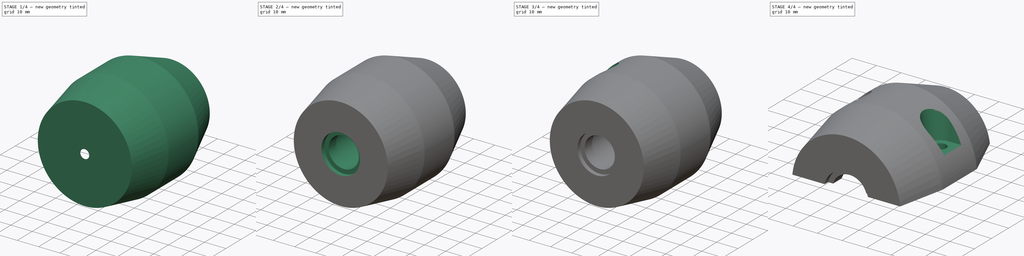
[diagram: build sequence overview — one tinted view per stage of 4, left to right]
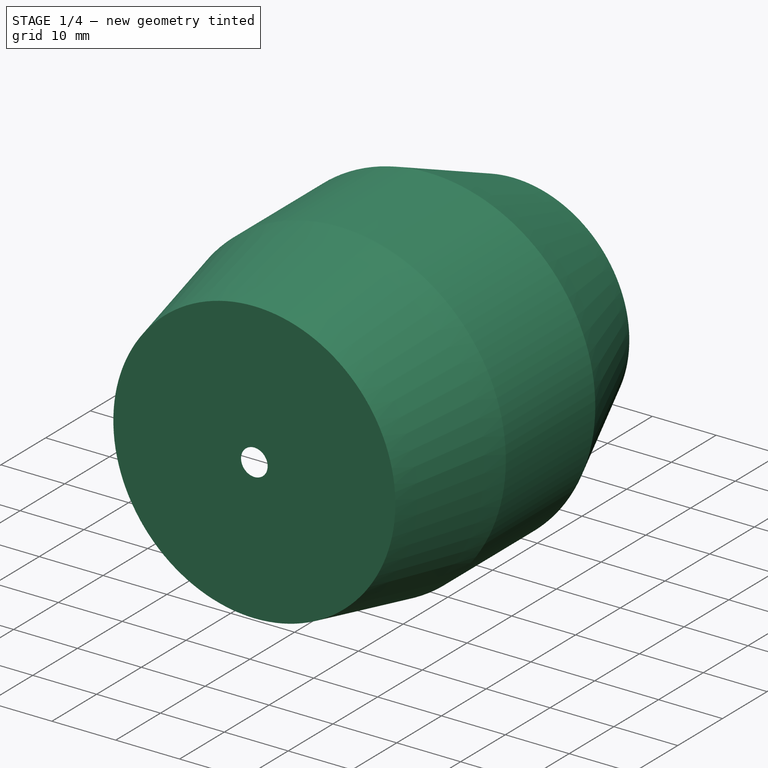
[diagram: stage 1 of 4 — iso view after this stage's code; geometry added in this stage tinted green]
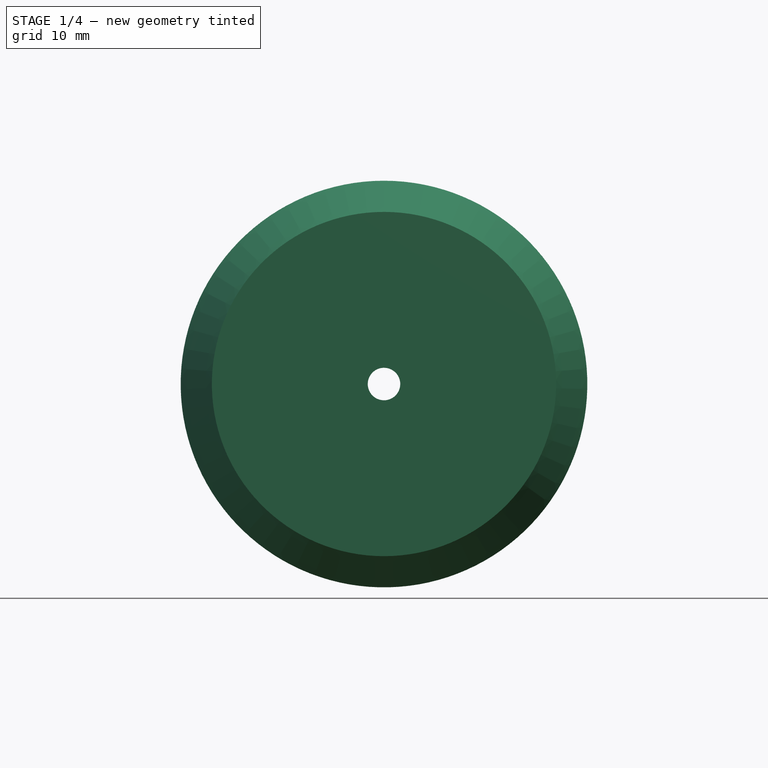
[diagram: stage 1 of 4 — front view after this stage's code; geometry added in this stage tinted green]
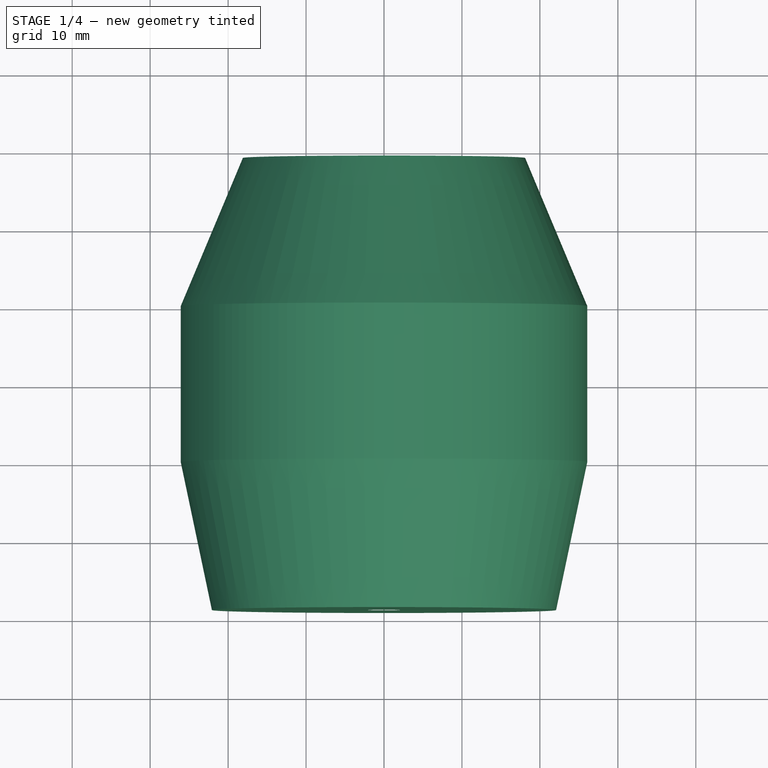
[diagram: stage 1 of 4 — top view after this stage's code; geometry added in this stage tinted green]
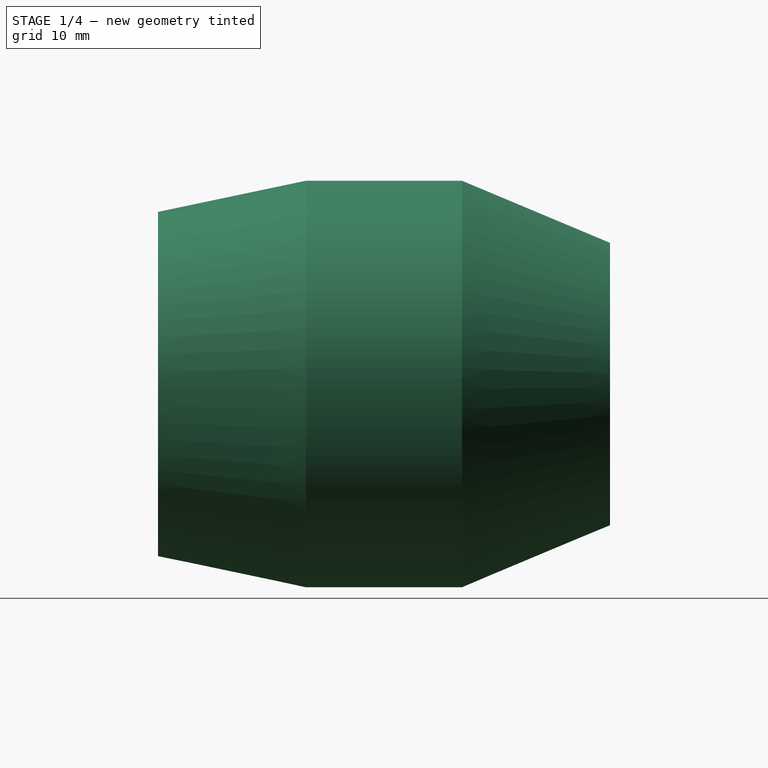
[diagram: stage 1 of 4 — right view after this stage's code; geometry added in this stage tinted green]
FCSTD DOCUMENT  (FreeCAD 1.1R41905 (Git))
Label: 23-12-05-SINK_WEIGHT
License: Creative Commons Attribution-NonCommercial-ShareAlike 4.0
LicenseURL: https://creativecommons.org/licenses/by-nc-sa/4.0/
objects: Sketcher::SketchObject×5, PartDesign::Pocket×5, PartDesign::Mirrored×2, App::Point×1, PartDesign::Pad×1, PartDesign::Revolution×1, Part::DatumPlane×1, PartDesign::Hole×1, PartDesign::Body×1, App::TextDocument×1
note: 39 computed .brp shape members not serialized (recipe doc carries the construction recipe); baked Part::Feature solids carry a one-line shape summary decoded from their .brp

FEATURE [App::Point] Origin001  label="Origine"
  Role = Origin
FEATURE [Sketcher::SketchObject] Sketch
  ArcFitTolerance = 1e-06
  AttachmentSupport = -> [Origin]
  ExternalTypes = [0]
  FullyConstrained = false
  MakeInternals = false
  MapMode = 5
  Placement = pos=(0,0,0) rot=(1,0,0;1.5708rad)
  sketch-geometry (7):
    g0: ArcOfCircle CenterX=0 CenterY=0 CenterZ=0 NormalX=0 NormalY=0 NormalZ=1 AngleXU=0 Radius=26.0833 StartAngle=0.0799574 EndAngle=3.06164
    g1: LineSegment StartX=-26 StartY=2.08333 StartZ=0 EndX=26 EndY=2.08333 EndZ=0
    g2: GeomPoint X=0 Y=26.0833 Z=0
    g3: GeomPoint X=0 Y=9.08333 Z=0
    g4: GeomPoint X=0 Y=2.08333 Z=0
    g5: GeomPoint X=0 Y=7.08333 Z=0
    g6: GeomPoint X=0 Y=12.0833 Z=0
  constraints (14):
    c: Coincident(g0,g-1)
    c: Coincident(g1,g0)
    c: Coincident(g1,g0)
    c: Horizontal(g1)
    c: DistanceX(g1,g1) = 52
    c: PointOnObject(g2,g0)
    c: DistanceY(g0,g2) = 24
    c: PointOnObject(g2,g-2)
    c: PointOnObject(g3,g-2)
    c: Distance(g3,g1) = 7
    c: PointOnObject(g5,g-2)
    c: Distance(g5,g1) = 5
    c: PointOnObject(g6,g-2)
    c: Distance(g6,g1) = 10
FEATURE [PartDesign::Pad] Pad
  Direction = (0,-1,2e-16)
  Length = 20
  Length2 = 10
  Midplane = true
  Profile = -> Sketch
  ReferenceAxis = -> Sketch [N_Axis]
  Refine = true
  Suppressed = false
  Type = 0
FEATURE [Sketcher::SketchObject] Sketch001
  ArcFitTolerance = 1e-06
  AttachmentSupport = -> [Origin]
  ExternalGeometry = -> [Pad]
  ExternalTypes = [0,0]
  FullyConstrained = true
  MakeInternals = false
  MapMode = 5
  Placement = pos=(0,0,0) rot=(0.57735,0.57735,0.57735;2.0944rad)
  sketch-geometry (10):
    g0: LineSegment StartX=10 StartY=2.08333 StartZ=0 EndX=29 EndY=2.08333 EndZ=0
    g1: LineSegment StartX=29 StartY=2.08333 StartZ=0 EndX=29 EndY=18.1115 EndZ=0
    g2: LineSegment StartX=29 StartY=18.1115 StartZ=0 EndX=10 EndY=26.0833 EndZ=0
    g3: LineSegment [constr] StartX=10 StartY=26.0833 StartZ=0 EndX=10 EndY=2.08333 EndZ=0
    g4: LineSegment [constr] StartX=-10 StartY=2.08333 StartZ=0 EndX=-10 EndY=26.0833 EndZ=0
    g5: LineSegment StartX=-10 StartY=26.0833 StartZ=0 EndX=-29 EndY=22.0833 EndZ=0
    g6: LineSegment StartX=-29 StartY=22.0833 StartZ=0 EndX=-29 EndY=2.08333 EndZ=0
    g7: LineSegment StartX=-29 StartY=2.08333 StartZ=0 EndX=-10 EndY=2.08333 EndZ=0
    g8: LineSegment StartX=-10 StartY=26.0833 StartZ=0 EndX=10 EndY=26.0833 EndZ=0
    g9: LineSegment StartX=-10 StartY=2.08333 StartZ=0 EndX=10 EndY=2.08333 EndZ=0
  constraints (24):
    c: Coincident(g-3,g0)
    c: Horizontal(g0)
    c: Coincident(g0,g1)
    c: Vertical(g1)
    c: Coincident(g1,g2)
    c: Coincident(g2,g-3)
    c: Coincident(g2,g3)
    c: Coincident(g3,g0)
    c: Coincident(g-4,g4)
    c: Coincident(g4,g-4)
    c: Coincident(g4,g5)
    c: Coincident(g5,g6)
    c: Vertical(g6)
    c: Coincident(g6,g7)
    c: Coincident(g7,g-4)
    c: Horizontal(g7)
    c: DistanceX(g7,g7) = 19
    c: Equal(g7,g0)
    c: DistanceY(g6,g6) = 20
    c: Equal(g1,g1)
    c: Coincident(g8,g4)
    c: Coincident(g8,g2)
    c: Coincident(g9,g4)
    c: Coincident(g9,g0)
FEATURE [PartDesign::Revolution] Revolution
  Angle = 360
  Angle2 = 60
  Axis = (1e-16,1,-1e-16)
  Base = (0,0,0)
  BaseFeature = -> Pad
  Profile = -> Sketch001
  ReferenceAxis = -> Y_Axis
  Refine = true
  Suppressed = false
  Type = 0
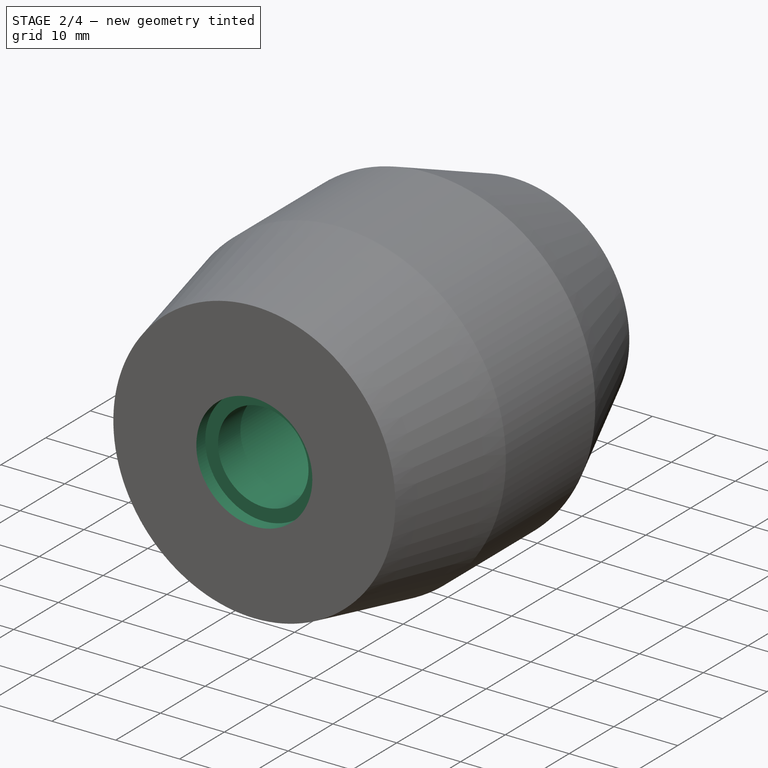
[diagram: stage 2 of 4 — iso view after this stage's code; geometry added in this stage tinted green]
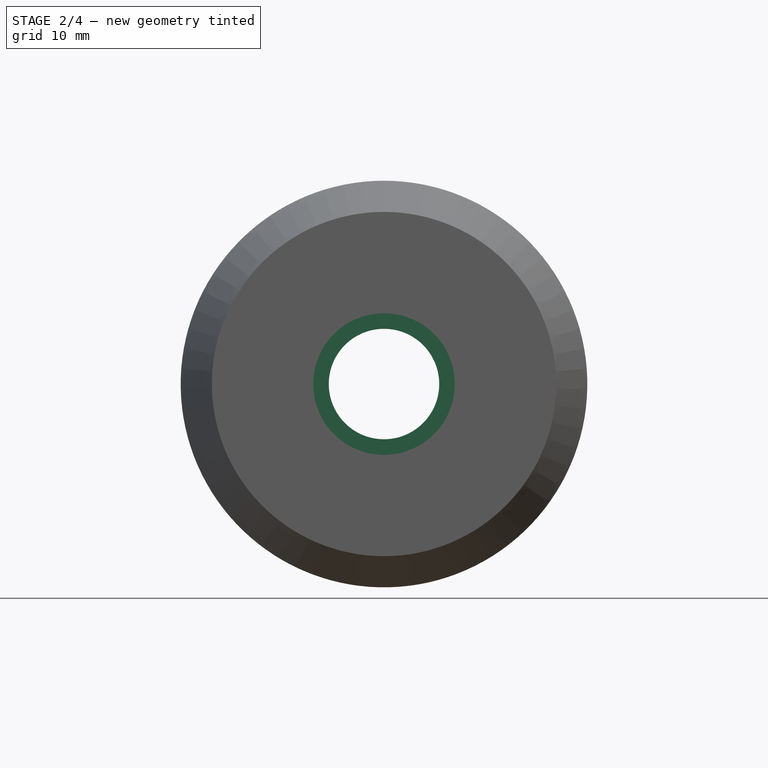
[diagram: stage 2 of 4 — front view after this stage's code; geometry added in this stage tinted green]
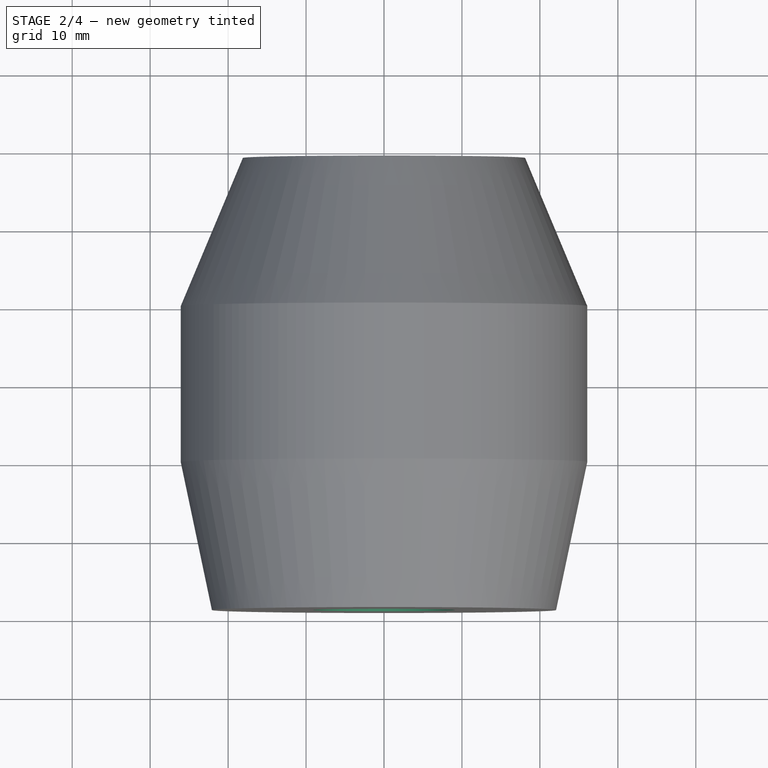
[diagram: stage 2 of 4 — top view after this stage's code; geometry added in this stage tinted green]
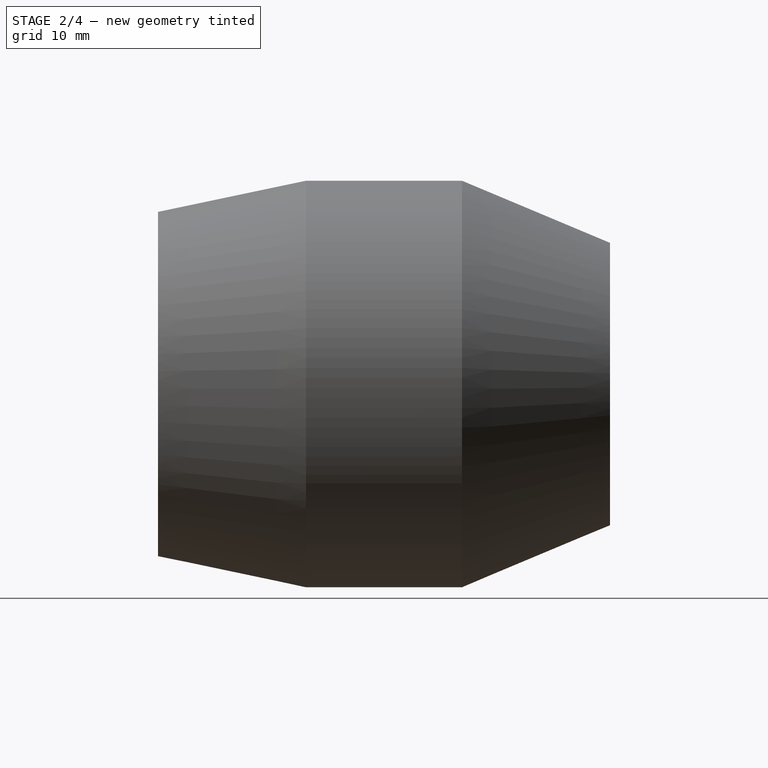
[diagram: stage 2 of 4 — right view after this stage's code; geometry added in this stage tinted green]
FEATURE [Sketcher::SketchObject] Sketch002
  ArcFitTolerance = 1e-06
  AttachmentSupport = -> [Origin]
  ExternalGeometry = -> [Sketch]
  ExternalTypes = [0,0]
  FullyConstrained = true
  MakeInternals = false
  MapMode = 5
  Placement = pos=(0,0,0) rot=(1,0,0;1.5708rad)
  sketch-geometry (2):
    g0: Circle CenterX=0 CenterY=0 CenterZ=0 NormalX=0 NormalY=0 NormalZ=1 AngleXU=0 Radius=9.08333
    g1: Circle CenterX=0 CenterY=0 CenterZ=0 NormalX=0 NormalY=0 NormalZ=1 AngleXU=0 Radius=7.08333
  constraints (4):
    c: Coincident(g0,g-1)
    c: PointOnObject(g-3,g0)
    c: Coincident(g1,g0)
    c: PointOnObject(g-4,g1)
FEATURE [PartDesign::Pocket] Pocket
  BaseFeature = -> Revolution
  Direction = (0,1,-2e-16)
  Length = 5
  Length2 = 5
  Midplane = true
  Profile = -> Sketch002 [Edge2]
  ReferenceAxis = -> Sketch002 [N_Axis]
  Refine = true
  Suppressed = false
  Type = 1
FEATURE [PartDesign::Pocket] Pocket001
  BaseFeature = -> Pocket
  Direction = (0,1,-2e-16)
  Length = 44
  Length2 = 5
  Midplane = true
  Profile = -> Sketch002 [Edge1]
  ReferenceAxis = -> Sketch002 [N_Axis]
  Refine = true
  Suppressed = false
  Type = 0
FEATURE [PartDesign::Pocket] Pocket002
  BaseFeature = -> Pocket001
  Direction = (0,-1,0)
  Length = 7
  Length2 = -5
  Offset = -4
  Profile = -> Pocket001 [Face9]
  Refine = true
  Suppressed = false
  Type = 4
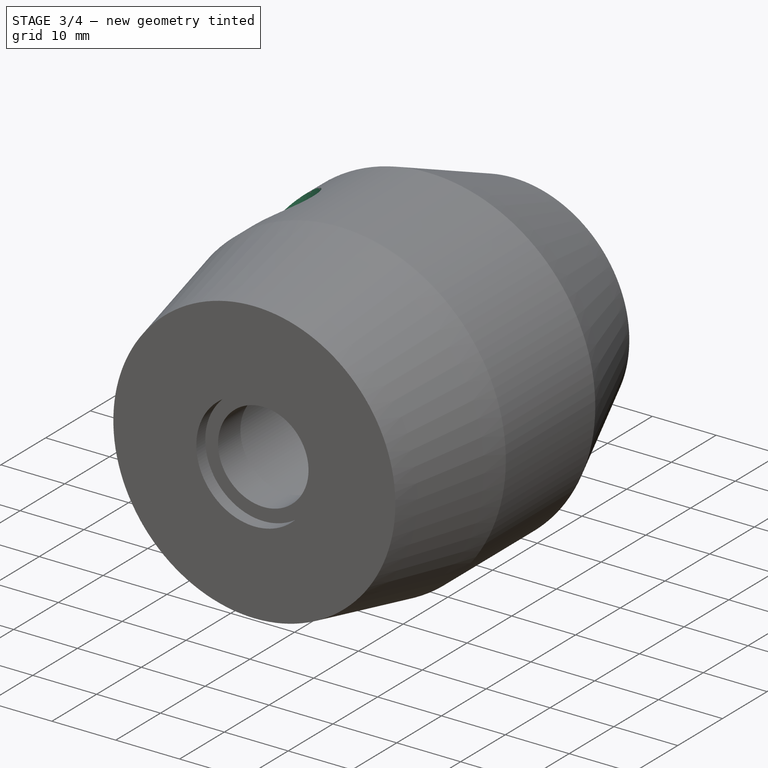
[diagram: stage 3 of 4 — iso view after this stage's code; geometry added in this stage tinted green]
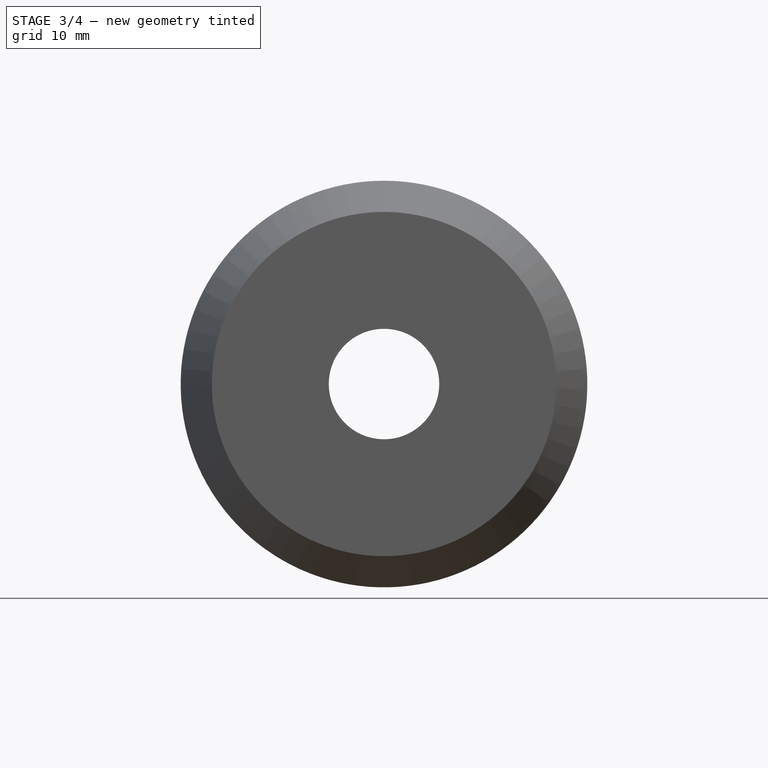
[diagram: stage 3 of 4 — front view after this stage's code; geometry added in this stage tinted green]
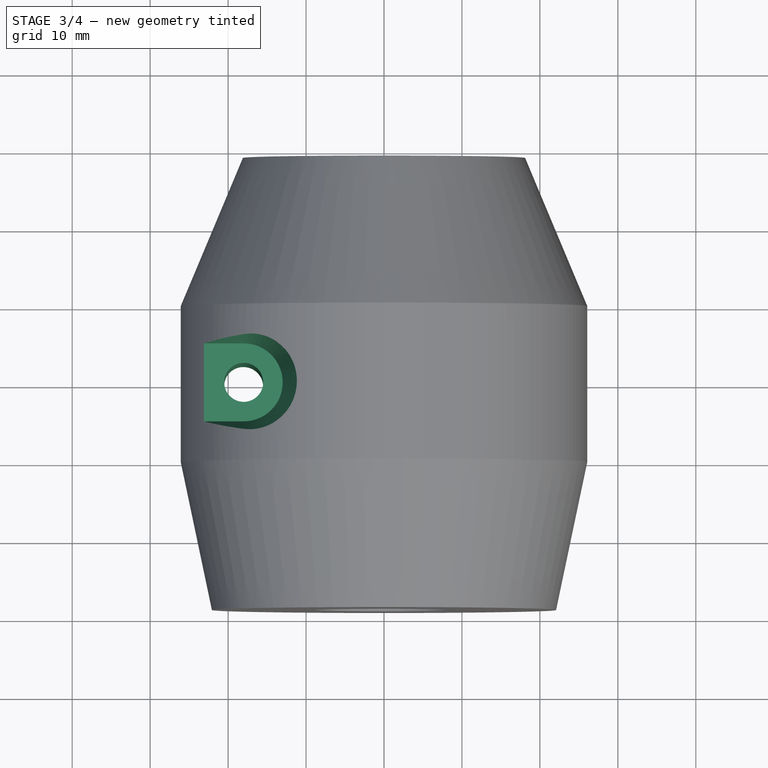
[diagram: stage 3 of 4 — top view after this stage's code; geometry added in this stage tinted green]
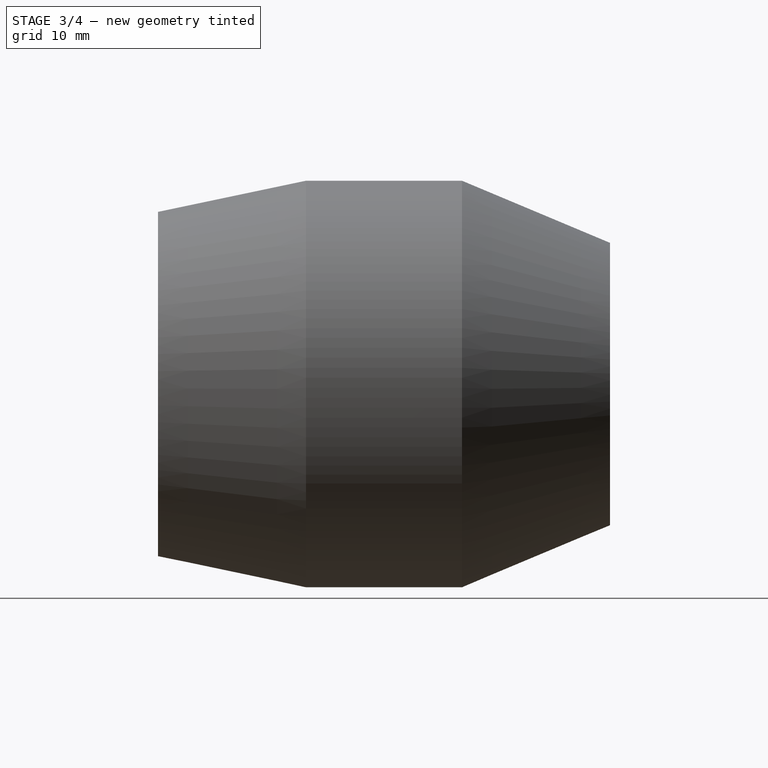
[diagram: stage 3 of 4 — right view after this stage's code; geometry added in this stage tinted green]
FEATURE [PartDesign::Mirrored] Mirrored
  BaseFeature = -> Pocket002
  MirrorPlane = -> XZ_Plane
  Originals = -> [Pocket002]
  Refine = true
  Suppressed = false
  TransformMode = 0
FEATURE [Part::DatumPlane] DatumPlane
  AttachmentSupport = -> [Sketch]
  MapMode = 1
  Placement = pos=(0,2.7e-15,12.0833) rot=(0,0,1;0rad)
FEATURE [Sketcher::SketchObject] Sketch003
  ArcFitTolerance = 1e-06
  AttachmentSupport = -> [DatumPlane]
  ExternalGeometry = -> [Mirrored]
  ExternalTypes = [0]
  FullyConstrained = true
  MakeInternals = false
  MapMode = 5
  Placement = pos=(0,2.7e-15,12.0833) rot=(0,0,1;0rad)
  sketch-geometry (4):
    g0: ArcOfCircle CenterX=-18 CenterY=0 CenterZ=0 NormalX=0 NormalY=0 NormalZ=1 AngleXU=0 Radius=5 StartAngle=4.71239 EndAngle=7.85398
    g1: LineSegment StartX=-26 StartY=5 StartZ=0 EndX=-26 EndY=-5 EndZ=0
    g2: LineSegment StartX=-26 StartY=-5 StartZ=0 EndX=-18 EndY=-5 EndZ=0
    g3: LineSegment StartX=-18 StartY=5 StartZ=0 EndX=-26 EndY=5 EndZ=0
  constraints (13):
    c: PointOnObject(g0,g-1)
    c: Coincident(g1,g2)
    c: Coincident(g3,g1)
    c: Vertical(g1)
    c: Horizontal(g2)
    c: Horizontal(g3)
    c: Vertical(g1,g-3)
    c: Vertical(g0,g3)
    c: Coincident(g3,g0)
    c: Diameter(g0) = 10
    c: Coincident(g2,g0)
    c: Vertical(g0,g0)
    c: DistanceX(g0,g-1) = 18
FEATURE [PartDesign::Pocket] Pocket003
  BaseFeature = -> Mirrored
  Direction = (0,0,-1)
  Length = 30
  Length2 = 5
  Profile = -> Sketch003
  ReferenceAxis = -> Sketch003 [N_Axis]
  Refine = true
  Reversed = true
  Suppressed = false
  TaperAngle = 9
  Type = 0
FEATURE [PartDesign::Hole] Hole
  BaseFeature = -> Pocket003
  BaseProfileType = 7
  CustomThreadClearance = 0
  Depth = 189.547
  DepthType = 1
  Diameter = 5
  DrillForDepth = false
  DrillPoint = 1
  DrillPointAngle = 118
  HoleCutCountersinkAngle = 90
  HoleCutCustomValues = false
  HoleCutDepth = 0
  HoleCutDiameter = 0
  HoleCutType = 0
  ModelThread = false
  Profile = -> Pocket003 [Edge22]
  Refine = true
  Suppressed = false
  Tapered = false
  TaperedAngle = 90
  ThreadClass = 0
  ThreadDepth = 189.547
  ThreadDepthType = 0
  ThreadDiameter = 5
  ThreadDirection = 0
  ThreadFit = 0
  ThreadSize = 0
  ThreadType = 0
  Threaded = false
  UseCustomThreadClearance = false
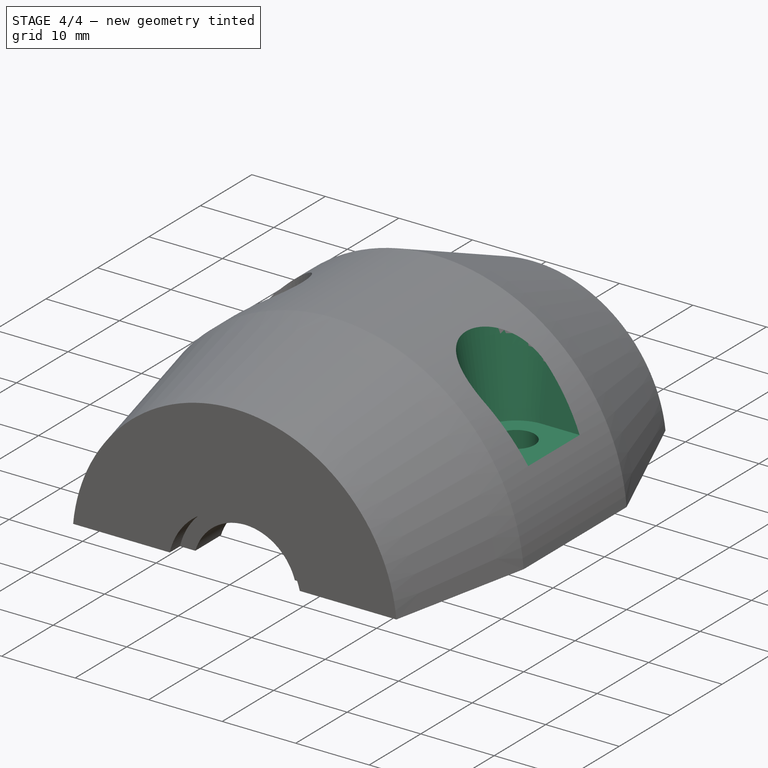
[diagram: stage 4 of 4 — iso view after this stage's code; geometry added in this stage tinted green]
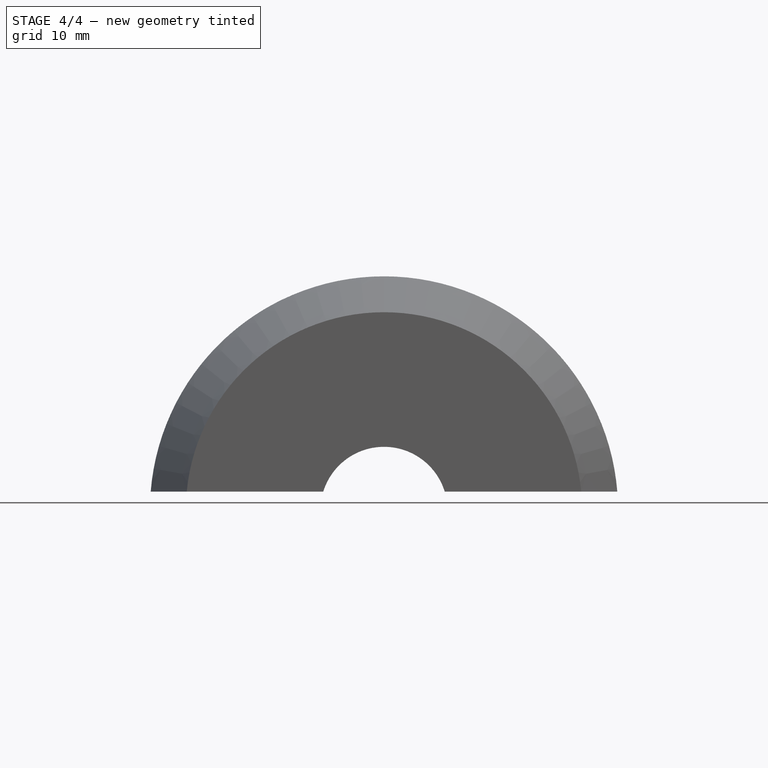
[diagram: stage 4 of 4 — front view after this stage's code; geometry added in this stage tinted green]
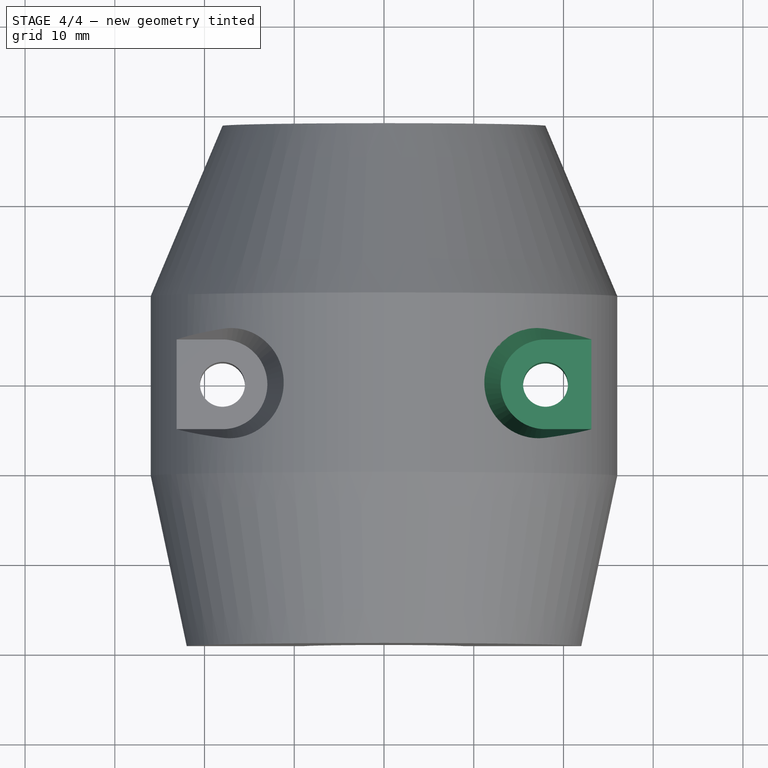
[diagram: stage 4 of 4 — top view after this stage's code; geometry added in this stage tinted green]
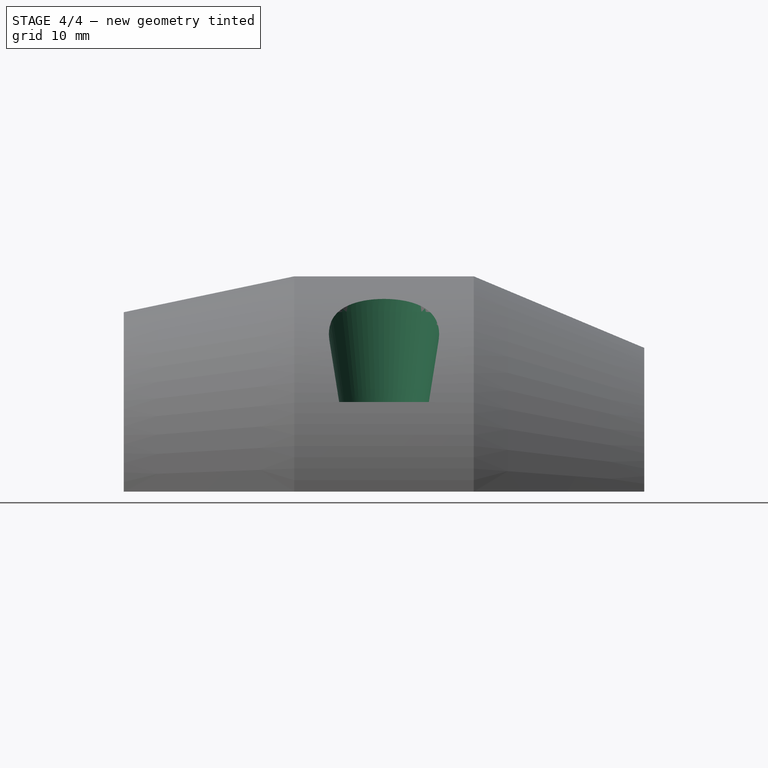
[diagram: stage 4 of 4 — right view after this stage's code; geometry added in this stage tinted green]
FEATURE [PartDesign::Mirrored] Mirrored001
  BaseFeature = -> Hole
  MirrorPlane = -> YZ_Plane
  Originals = -> [Hole,Pocket003]
  Refine = true
  Suppressed = false
  TransformMode = 0
FEATURE [Sketcher::SketchObject] Sketch004
  ArcFitTolerance = 1e-06
  AttachmentSupport = -> [Origin]
  ExternalGeometry = -> [Sketch001]
  ExternalTypes = [0,0]
  FullyConstrained = true
  MakeInternals = false
  MapMode = 5
  Placement = pos=(0,0,0) rot=(0.57735,0.57735,0.57735;2.0944rad)
  sketch-geometry (4):
    g0: LineSegment StartX=-40 StartY=2.08333 StartZ=0 EndX=-40 EndY=-57.9167 EndZ=0
    g1: LineSegment StartX=-40 StartY=-57.9167 StartZ=0 EndX=40 EndY=-57.9167 EndZ=0
    g2: LineSegment StartX=40 StartY=-57.9167 StartZ=0 EndX=40 EndY=2.08333 EndZ=0
    g3: LineSegment StartX=40 StartY=2.08333 StartZ=0 EndX=-40 EndY=2.08333 EndZ=0
  constraints (11):
    c: Coincident(g0,g1)
    c: Coincident(g1,g2)
    c: Coincident(g2,g3)
    c: Coincident(g3,g0)
    c: Vertical(g0)
    c: Vertical(g2)
    c: Horizontal(g1)
    c: Distance(g0,g2) = 80
    c: Distance(g1,g3) = 60
    c: Symmetric(g0,g2,g-2)
    c: PointOnObject(g-3,g3)
FEATURE [PartDesign::Pocket] Pocket004
  BaseFeature = -> Mirrored001
  Direction = (-1,0,0)
  Length = 5
  Length2 = 5
  Midplane = true
  Profile = -> Sketch004
  ReferenceAxis = -> Sketch004 [N_Axis]
  Refine = true
  Suppressed = false
  Type = 1
FEATURE [PartDesign::Body] Body
  AllowCompound = false
  Group = -> [Sketch,Pad,Sketch001,Revolution,Sketch002,Pocket,Pocket001,Pocket002,Mirrored,DatumPlane,Sketch003,Pocket003,Hole,Mirrored001,Sketch004,Pocket004]
  Origin = -> Origin
  Tip = -> Pocket004
FEATURE [App::TextDocument] Text_document  label="README"
  Text = https://www.youtube.com/watch?v=Kv0nb78dSGo\n\n1060 ALUM ALLOY\n2700 kg/m3
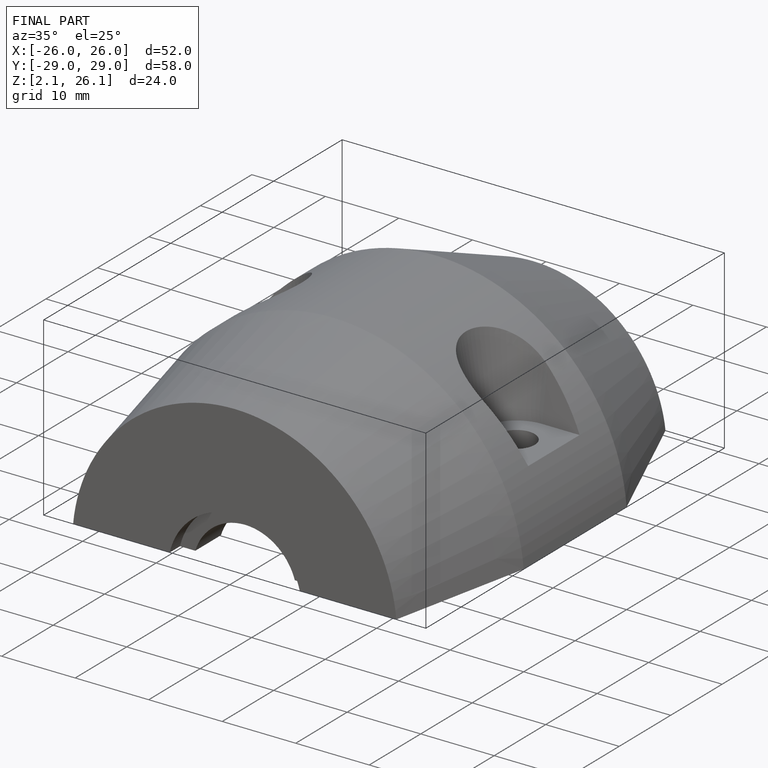
[diagram: finished part — iso view with bounding-box wireframe]
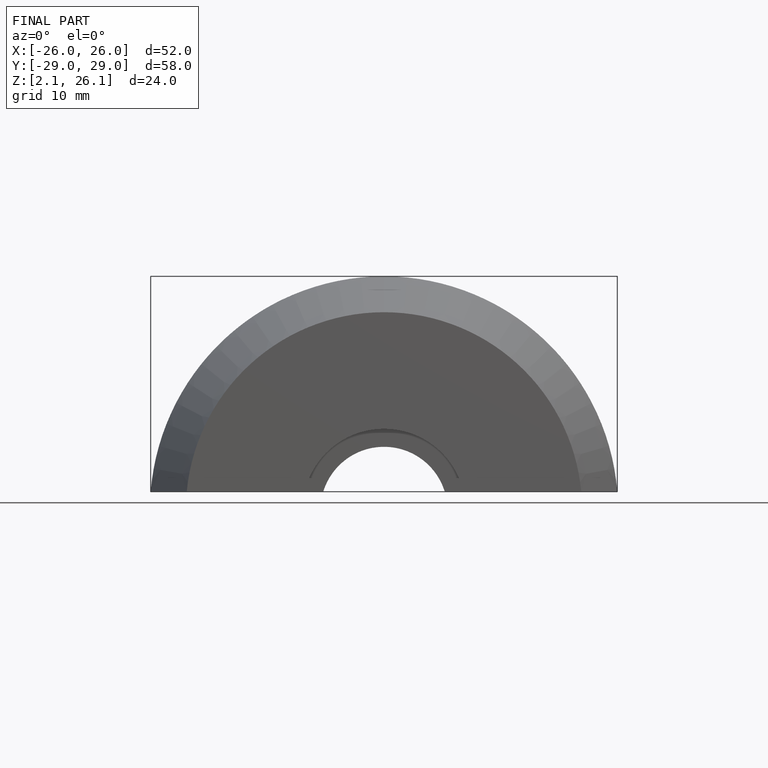
[diagram: finished part — front view with bounding-box wireframe]
